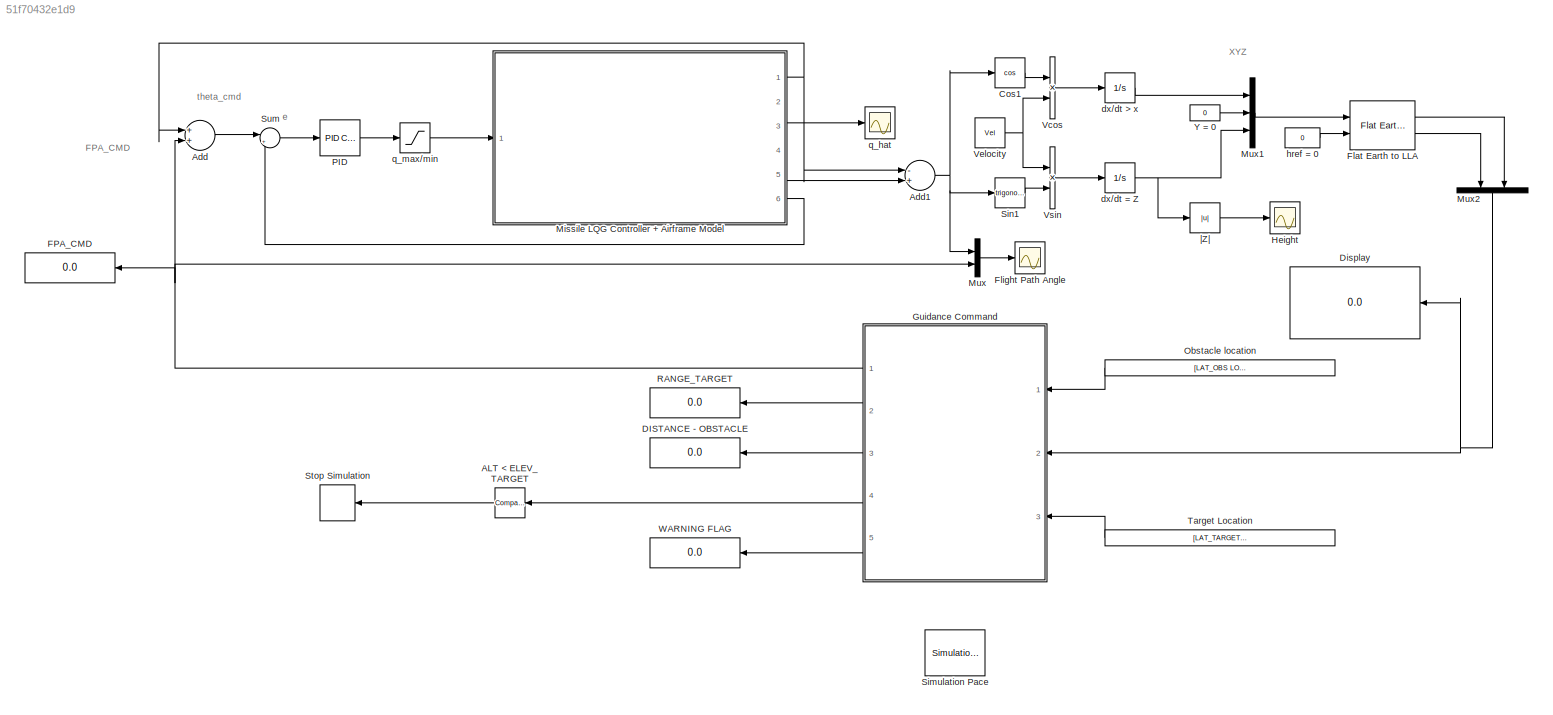
MODEL slx_51f70432e1d9
KIND model
CONFIG AbsTol = auto
CONFIG EnableMultiTasking = off
CONFIG FixedStep = auto
CONFIG MaxStep = auto
CONFIG MinStep = auto
CONFIG RelTol = 1e-3
CONFIG SampleTimeConstraint = Unconstrained
CONFIG Solver = VariableStepAuto
CONFIG SolverName = VariableStepAuto
CONFIG StartTime = 0.0
CONFIG StopTime = 80
BLOCK [Reference] ALT < ELEV_TARGET  REF=simulink/Logic and Bit
Operations/Compare
To Constant
  Ports = [1, 1]
  SourceBlock = simulink/Logic and Bit\nOperations/Compare\nTo Constant
  SourceProductBaseCode = SL
  SourceProductName = Simulink
  SourceType = Compare To Constant
BLOCK [Sum] Add
  InputSameDT = off
  OutDataTypeStr = Inherit: Inherit via internal rule
  Ports = [2, 1]
  SaturateOnIntegerOverflow = off
BLOCK [Sum] Add1
  InputSameDT = off
  Inputs = -+
  OutDataTypeStr = Inherit: Inherit via internal rule
  Ports = [2, 1]
  SaturateOnIntegerOverflow = off
BLOCK [Trigonometry] Cos1
  Operator = cos
  Ports = [1, 1]
BLOCK [Display] DISTANCE - OBSTACLE
  Decimation = 1
  Ports = [1]
BLOCK [Display] Display
  Decimation = 1
  Ports = [1]
BLOCK [Display] FPA_CMD
  Decimation = 1
  Ports = [1]
BLOCK [Reference] Flat Earth to LLA  REF=aerolibtransform2/Flat Earth to LLA
  Ports = [2, 2]
  SourceBlock = aerolibtransform2/Flat Earth to LLA
  SourceProductBaseCode = AE
  SourceProductName = Aerospace Blockset
  SourceType = Flat Earth to LLA
BLOCK [Scope] Flight Path Angle
  Floating = off
  NumInputPorts = 1
  Ports = [1]
  ScopeSpecificationString = Simulink.scopes.TimeScopeBlockCfg('CurrentConfiguration', extmgr.ConfigurationSet(extmgr.Configuration('Core','General UI',true),extmgr.Configuration('Core','Source UI',true),extmgr.Configuration('Sources','WiredSimulink',true,'DataLoggingVariableName','ScopeData1'),extmgr.Configuration('Visuals','Time Domain',true,'SerializedDisplays',{struct('MinYLimReal','-0.5859','MaxYLimReal','0.33583','YLabe...<+1434ch>
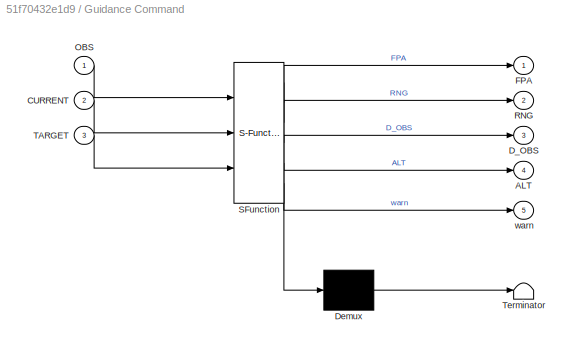
BLOCK [SubSystem] Guidance Command
  ErrorFcn = Stateflow.Translate.translate
  PermitHierarchicalResolution = ExplicitOnly
  Ports = [3, 5]
  RequestExecContextInheritance = off
  SFBlockType = MATLAB Function
  TreatAsAtomicUnit = on
BLOCK [Demux] Guidance Command/ Demux 
  Outputs = 1
  Ports = [1, 1]
BLOCK [S-Function] Guidance Command/ SFunction 
  EnableBusSupport = on
  FunctionName = sf_sfun
  PortCounts = [3 6]
  Ports = [3, 6]
  SFcnIsStateOwnerBlock = off
  SFunctionDeploymentMode = off
  Tag = Stateflow S-Function 2
BLOCK [Terminator] Guidance Command/ Terminator 
BLOCK [Outport] Guidance Command/ALT
  IconDisplay = Port number
  Port = 4
BLOCK [Inport] Guidance Command/CURRENT
  IconDisplay = Port number
  Port = 2
BLOCK [Outport] Guidance Command/D_OBS
  IconDisplay = Port number
  Port = 3
BLOCK [Outport] Guidance Command/FPA
  IconDisplay = Port number
BLOCK [Inport] Guidance Command/OBS
  IconDisplay = Port number
BLOCK [Outport] Guidance Command/RNG
  IconDisplay = Port number
  Port = 2
BLOCK [Inport] Guidance Command/TARGET
  IconDisplay = Port number
  Port = 3
BLOCK [Outport] Guidance Command/warn
  IconDisplay = Port number
  Port = 5
BLOCK [Scope] Height
  Floating = off
  NumInputPorts = 1
  Ports = [1]
  ScopeSpecificationString = Simulink.scopes.TimeScopeBlockCfg('CurrentConfiguration', extmgr.ConfigurationSet(extmgr.Configuration('Core','General UI',true),extmgr.Configuration('Core','Source UI',true),extmgr.Configuration('Sources','WiredSimulink',true,'DataLoggingVariableName','ScopeData2'),extmgr.Configuration('Visuals','Time Domain',true,'SerializedDisplays',{struct('MinYLimReal','-355.62572','MaxYLimReal','11150.63144'...<+1447ch>
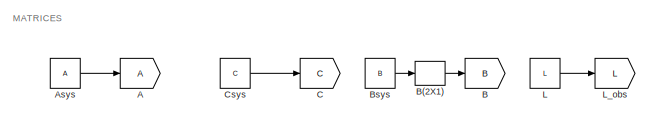
[diagram: Missile LQG Controller + Airframe Model - part 1/3, top center region]
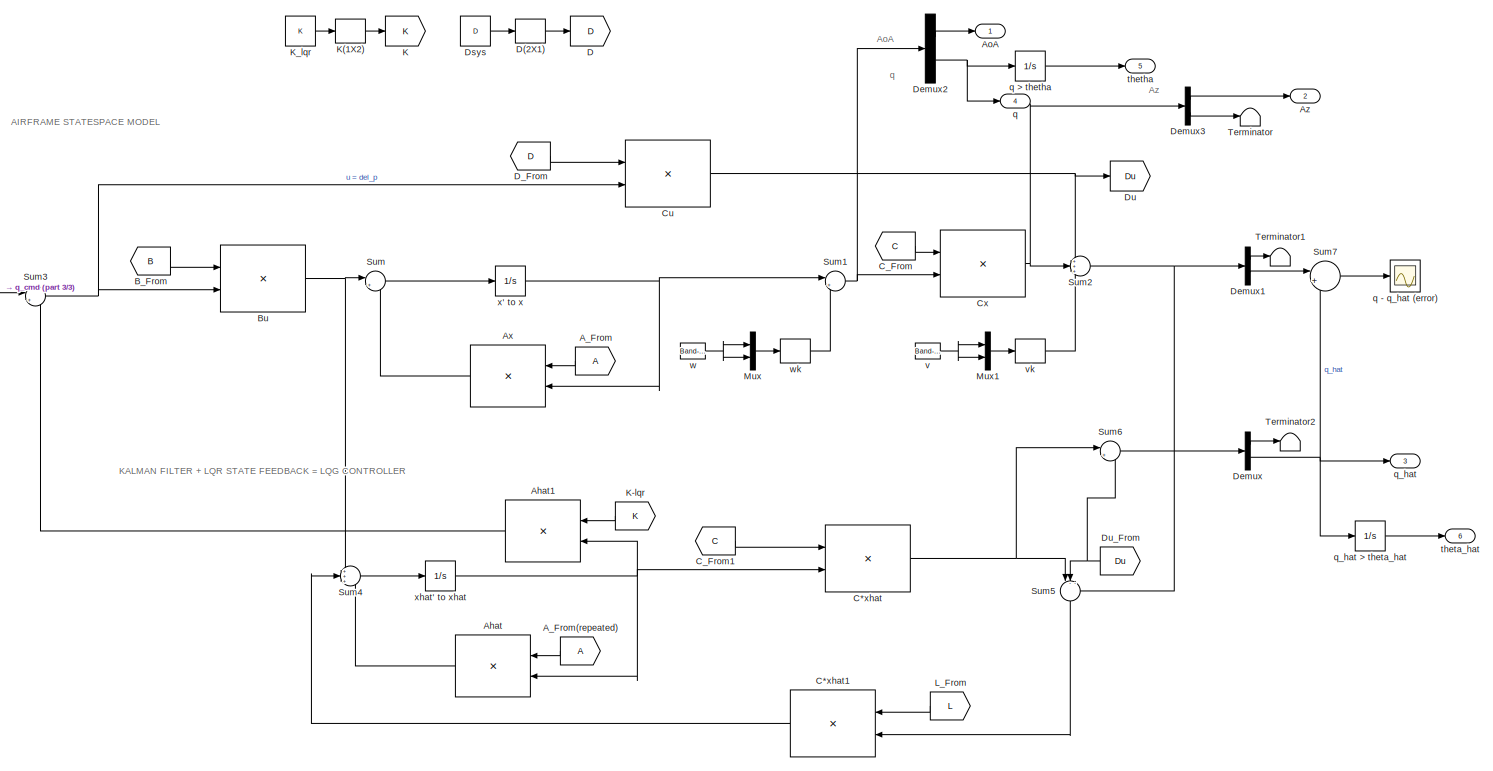
[diagram: Missile LQG Controller + Airframe Model - part 2/3, most of the canvas]
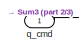
[diagram: Missile LQG Controller + Airframe Model - part 3/3, middle left region]
BLOCK [SubSystem] Missile LQG Controller + Airframe Model
  Ports = [1, 6]
  RequestExecContextInheritance = off
BLOCK [Goto] Missile LQG Controller + Airframe Model/A
BLOCK [From] Missile LQG Controller + Airframe Model/A_From
BLOCK [From] Missile LQG Controller + Airframe Model/A_From(repeated)
BLOCK [Product] Missile LQG Controller + Airframe Model/Ahat
  InputSameDT = off
  Multiplication = Matrix(*)
  OutDataTypeStr = Inherit: Inherit via internal rule
  Ports = [2, 1]
  RndMeth = Floor
  SaturateOnIntegerOverflow = off
BLOCK [Product] Missile LQG Controller + Airframe Model/Ahat1
  InputSameDT = off
  Multiplication = Matrix(*)
  OutDataTypeStr = Inherit: Inherit via internal rule
  Ports = [2, 1]
  RndMeth = Floor
  SaturateOnIntegerOverflow = off
BLOCK [Outport] Missile LQG Controller + Airframe Model/AoA
  IconDisplay = Port number
BLOCK [Constant] Missile LQG Controller + Airframe Model/Asys
  Value = A
BLOCK [Product] Missile LQG Controller + Airframe Model/Ax
  InputSameDT = off
  Multiplication = Matrix(*)
  OutDataTypeStr = Inherit: Inherit via internal rule
  Ports = [2, 1]
  RndMeth = Floor
  SaturateOnIntegerOverflow = off
BLOCK [Outport] Missile LQG Controller + Airframe Model/Az
  IconDisplay = Port number
  Port = 2
BLOCK [Goto] Missile LQG Controller + Airframe Model/B
  GotoTag = B
BLOCK [Reshape] Missile LQG Controller + Airframe Model/B(2X1)
  OutputDimensionality = Customize
  OutputDimensions = [2,1]
  Ports = [1, 1]
BLOCK [From] Missile LQG Controller + Airframe Model/B_From
  GotoTag = B
BLOCK [Constant] Missile LQG Controller + Airframe Model/Bsys
  Value = B
BLOCK [Product] Missile LQG Controller + Airframe Model/Bu
  InputSameDT = off
  Multiplication = Matrix(*)
  OutDataTypeStr = Inherit: Inherit via internal rule
  Ports = [2, 1]
  RndMeth = Floor
  SaturateOnIntegerOverflow = off
BLOCK [Goto] Missile LQG Controller + Airframe Model/C
  GotoTag = C
BLOCK [Product] Missile LQG Controller + Airframe Model/C*xhat
  InputSameDT = off
  Multiplication = Matrix(*)
  OutDataTypeStr = Inherit: Inherit via internal rule
  Ports = [2, 1]
  RndMeth = Floor
  SaturateOnIntegerOverflow = off
BLOCK [Product] Missile LQG Controller + Airframe Model/C*xhat1
  InputSameDT = off
  Multiplication = Matrix(*)
  OutDataTypeStr = Inherit: Inherit via internal rule
  Ports = [2, 1]
  RndMeth = Floor
  SaturateOnIntegerOverflow = off
BLOCK [From] Missile LQG Controller + Airframe Model/C_From
  GotoTag = C
BLOCK [From] Missile LQG Controller + Airframe Model/C_From1
  GotoTag = C
BLOCK [Constant] Missile LQG Controller + Airframe Model/Csys
  Value = C
BLOCK [Product] Missile LQG Controller + Airframe Model/Cu
  InputSameDT = off
  Multiplication = Matrix(*)
  OutDataTypeStr = Inherit: Inherit via internal rule
  Ports = [2, 1]
  RndMeth = Floor
  SaturateOnIntegerOverflow = off
BLOCK [Product] Missile LQG Controller + Airframe Model/Cx
  InputSameDT = off
  Multiplication = Matrix(*)
  OutDataTypeStr = Inherit: Inherit via internal rule
  Ports = [2, 1]
  RndMeth = Floor
  SaturateOnIntegerOverflow = off
BLOCK [Goto] Missile LQG Controller + Airframe Model/D
  GotoTag = D
BLOCK [Reshape] Missile LQG Controller + Airframe Model/D(2X1)
  OutputDimensionality = Customize
  OutputDimensions = [2,1]
  Ports = [1, 1]
BLOCK [From] Missile LQG Controller + Airframe Model/D_From
  GotoTag = D
BLOCK [Demux] Missile LQG Controller + Airframe Model/Demux
  DisplayOption = bar
  Outputs = 2
  Ports = [1, 2]
BLOCK [Demux] Missile LQG Controller + Airframe Model/Demux1
  DisplayOption = bar
  Outputs = 2
  Ports = [1, 2]
BLOCK [Demux] Missile LQG Controller + Airframe Model/Demux2
  DisplayOption = bar
  Outputs = 2
  Ports = [1, 2]
BLOCK [Demux] Missile LQG Controller + Airframe Model/Demux3
  DisplayOption = bar
  Outputs = 2
  Ports = [1, 2]
BLOCK [Constant] Missile LQG Controller + Airframe Model/Dsys
  Value = D
BLOCK [Goto] Missile LQG Controller + Airframe Model/Du
  GotoTag = Du
BLOCK [From] Missile LQG Controller + Airframe Model/Du_From
  GotoTag = Du
BLOCK [Goto] Missile LQG Controller + Airframe Model/K
  GotoTag = K
BLOCK [Reshape] Missile LQG Controller + Airframe Model/K(1X2)
  OutputDimensionality = Customize
  OutputDimensions = [1,2]
  Ports = [1, 1]
BLOCK [From] Missile LQG Controller + Airframe Model/K-lqr
  GotoTag = K
BLOCK [Constant] Missile LQG Controller + Airframe Model/K_lqr
  Value = K
BLOCK [Constant] Missile LQG Controller + Airframe Model/L 
  Value = L
BLOCK [From] Missile LQG Controller + Airframe Model/L_From
  GotoTag = L
BLOCK [Goto] Missile LQG Controller + Airframe Model/L_obs
  GotoTag = L
BLOCK [Mux] Missile LQG Controller + Airframe Model/Mux
  DisplayOption = bar
  Inputs = 2
  Ports = [2, 1]
BLOCK [Mux] Missile LQG Controller + Airframe Model/Mux1
  DisplayOption = bar
  Inputs = 2
  Ports = [2, 1]
BLOCK [Sum] Missile LQG Controller + Airframe Model/Sum
  IconShape = round
  InputSameDT = off
  Inputs = |++
  OutDataTypeStr = Inherit: Inherit via internal rule
  Ports = [2, 1]
  SaturateOnIntegerOverflow = off
BLOCK [Sum] Missile LQG Controller + Airframe Model/Sum1
  IconShape = round
  InputSameDT = off
  Inputs = |++
  OutDataTypeStr = Inherit: Inherit via internal rule
  Ports = [2, 1]
  SaturateOnIntegerOverflow = off
BLOCK [Sum] Missile LQG Controller + Airframe Model/Sum2
  IconShape = round
  InputSameDT = off
  Inputs = +++
  OutDataTypeStr = Inherit: Inherit via internal rule
  Ports = [3, 1]
  SaturateOnIntegerOverflow = off
BLOCK [Sum] Missile LQG Controller + Airframe Model/Sum3
  IconShape = round
  InputSameDT = off
  Inputs = |+-
  OutDataTypeStr = Inherit: Inherit via internal rule
  Ports = [2, 1]
  SaturateOnIntegerOverflow = off
BLOCK [Sum] Missile LQG Controller + Airframe Model/Sum4
  IconShape = round
  InputSameDT = off
  Inputs = +++
  OutDataTypeStr = Inherit: Inherit via internal rule
  Ports = [3, 1]
  SaturateOnIntegerOverflow = off
BLOCK [Sum] Missile LQG Controller + Airframe Model/Sum5
  IconShape = round
  InputSameDT = off
  Inputs = |--+
  OutDataTypeStr = Inherit: Inherit via internal rule
  Ports = [3, 1]
  SaturateOnIntegerOverflow = off
BLOCK [Sum] Missile LQG Controller + Airframe Model/Sum6
  IconShape = round
  InputSameDT = off
  Inputs = |++
  OutDataTypeStr = Inherit: Inherit via internal rule
  Ports = [2, 1]
  SaturateOnIntegerOverflow = off
BLOCK [Sum] Missile LQG Controller + Airframe Model/Sum7
  IconShape = round
  InputSameDT = off
  Inputs = |+-
  OutDataTypeStr = Inherit: Inherit via internal rule
  Ports = [2, 1]
  SaturateOnIntegerOverflow = off
BLOCK [Terminator] Missile LQG Controller + Airframe Model/Terminator
BLOCK [Terminator] Missile LQG Controller + Airframe Model/Terminator1
BLOCK [Terminator] Missile LQG Controller + Airframe Model/Terminator2
BLOCK [Outport] Missile LQG Controller + Airframe Model/q
  IconDisplay = Port number
  Port = 4
BLOCK [Scope] Missile LQG Controller + Airframe Model/q - q_hat (error)
  Floating = off
  NumInputPorts = 1
  Ports = [1]
  ScopeSpecificationString = Simulink.scopes.TimeScopeBlockCfg('CurrentConfiguration', extmgr.ConfigurationSet(extmgr.Configuration('Core','General UI',true),extmgr.Configuration('Core','Source UI',true),extmgr.Configuration('Sources','WiredSimulink',true),extmgr.Configuration('Visuals','Time Domain',true,'SerializedDisplays',{struct('MinYLimReal','-0.02017','MaxYLimReal','0.02144','YLabelReal','','MinYLimMag','0.00000','MaxY...<+1324ch>
BLOCK [Integrator] Missile LQG Controller + Airframe Model/q > thetha
  Ports = [1, 1]
BLOCK [Inport] Missile LQG Controller + Airframe Model/q_cmd 
  IconDisplay = Port number
BLOCK [Outport] Missile LQG Controller + Airframe Model/q_hat
  IconDisplay = Port number
  Port = 3
BLOCK [Integrator] Missile LQG Controller + Airframe Model/q_hat > theta_hat
  Ports = [1, 1]
BLOCK [Outport] Missile LQG Controller + Airframe Model/theta_hat
  IconDisplay = Port number
  Port = 6
BLOCK [Outport] Missile LQG Controller + Airframe Model/thetha
  IconDisplay = Port number
  Port = 5
BLOCK [Reference] Missile LQG Controller + Airframe Model/v  REF=simulink/Sources/Band-Limited
White Noise
  Ports = [0, 1]
  SourceBlock = simulink/Sources/Band-Limited\nWhite Noise
  SourceProductBaseCode = SL
  SourceProductName = Simulink
  SourceType = Band-Limited White Noise.
BLOCK [Reshape] Missile LQG Controller + Airframe Model/vk
  OutputDimensionality = Customize
  OutputDimensions = [2,1]
  Ports = [1, 1]
BLOCK [Reference] Missile LQG Controller + Airframe Model/w  REF=simulink/Sources/Band-Limited
White Noise
  Ports = [0, 1]
  SourceBlock = simulink/Sources/Band-Limited\nWhite Noise
  SourceProductBaseCode = SL
  SourceProductName = Simulink
  SourceType = Band-Limited White Noise.
BLOCK [Reshape] Missile LQG Controller + Airframe Model/wk
  OutputDimensionality = Customize
  OutputDimensions = [2,1]
  Ports = [1, 1]
BLOCK [Integrator] Missile LQG Controller + Airframe Model/x' to x
  Ports = [1, 1]
BLOCK [Integrator] Missile LQG Controller + Airframe Model/xhat' to xhat
  Ports = [1, 1]
BLOCK [Mux] Mux
  DisplayOption = bar
  Inputs = 2
  Ports = [2, 1]
BLOCK [Mux] Mux1
  DisplayOption = bar
  Inputs = 3
  Ports = [3, 1]
BLOCK [Mux] Mux2
  DisplayOption = bar
  Inputs = 2
  Ports = [2, 1]
BLOCK [Constant] Obstacle location
  Value = [LAT_OBS LON_OBS ELEV_OBS]
  VectorParams1D = off
BLOCK [Reference] PID   REF=simulink/Continuous/PID Controller
  Ports = [1, 1]
  SourceBlock = simulink/Continuous/PID Controller
  SourceProductBaseCode = SL
  SourceProductName = Simulink
  SourceType = PID 1dof
BLOCK [Display] RANGE_TARGET
  Decimation = 1
  Ports = [1]
BLOCK [Reference] Simulation Pace  REF=aerolibanimutils/Simulation Pace
  AttributesFormatString = %<SleepMode>\n%<SimulationPace> sec/sec
  Ports = []
  SourceBlock = aerolibanimutils/Simulation Pace
  SourceProductBaseCode = AE
  SourceProductName = Aerospace Blockset
  SourceType = Simulation Pace
BLOCK [Trigonometry] Sin1
  Ports = [1, 1]
BLOCK [Stop] Stop Simulation
BLOCK [Sum] Sum
  IconShape = round
  InputSameDT = off
  Inputs = |+-
  OutDataTypeStr = Inherit: Inherit via internal rule
  Ports = [2, 1]
  SaturateOnIntegerOverflow = off
BLOCK [Constant] Target Location
  Value = [LAT_TARGET LON_TARGET ELEV_TARGET]
  VectorParams1D = off
BLOCK [Product] Vcos
  InputSameDT = off
  OutDataTypeStr = Inherit: Inherit via internal rule
  Ports = [2, 1]
  RndMeth = Floor
  SaturateOnIntegerOverflow = off
BLOCK [Constant] Velocity
  Value = Vel
BLOCK [Product] Vsin
  InputSameDT = off
  OutDataTypeStr = Inherit: Inherit via internal rule
  Ports = [2, 1]
  RndMeth = Floor
  SaturateOnIntegerOverflow = off
BLOCK [Display] WARNING FLAG
  Decimation = 1
  Ports = [1]
BLOCK [Constant] Y = 0
  Value = 0
BLOCK [Integrator] dx//dt = Z
  InitialCondition = -ELEV_INIT
  Ports = [1, 1]
BLOCK [Integrator] dx//dt > x
  Ports = [1, 1]
BLOCK [Constant] href = 0
  Value = 0
BLOCK [Scope] q_hat
  Floating = off
  NumInputPorts = 1
  Ports = [1]
  ScopeSpecificationString = Simulink.scopes.TimeScopeBlockCfg('CurrentConfiguration', extmgr.ConfigurationSet(extmgr.Configuration('Core','General UI',true),extmgr.Configuration('Core','Source UI',true),extmgr.Configuration('Sources','WiredSimulink',true,'DataLoggingVariableName','ScopeData1'),extmgr.Configuration('Visuals','Time Domain',true,'SerializedDisplays',{struct('MinYLimReal','-1.04327','MaxYLimReal','1.06516','YLab...<+1467ch>
BLOCK [Saturate] q_max//min
  InputPortMap = u0
  Ports = [1, 1]
BLOCK [Abs] |Z|
  SaturateOnIntegerOverflow = off
ANNOTATION (root): FPA_CMD
ANNOTATION (root): XYZ
ANNOTATION (root): e
ANNOTATION (root): theta_cmd
ANNOTATION Missile LQG Controller + Airframe Model: AIRFRAME STATESPACE MODEL
ANNOTATION Missile LQG Controller + Airframe Model: AoA
ANNOTATION Missile LQG Controller + Airframe Model: Az
ANNOTATION Missile LQG Controller + Airframe Model: KALMAN FILTER + LQR STATE FEEDBACK = LQG CONTROLLER
ANNOTATION Missile LQG Controller + Airframe Model: MATRICES
ANNOTATION Missile LQG Controller + Airframe Model: q
LINE ALT < ELEV_TARGET:1 -> Stop Simulation:1
NET Add1:1 -> Cos1:1, Mux:1, Sin1:1
LINE Add:1 -> Sum:1
LINE Cos1:1 -> Vcos:1
LINE Flat Earth to LLA:1 -> Mux2:2
LINE Flat Earth to LLA:2 -> Mux2:1
NET Guidance Command:1 -> Add:2, FPA_CMD:1, Mux:2
LINE Guidance Command:2 -> RANGE_TARGET:1
LINE Guidance Command:3 -> DISTANCE - OBSTACLE:1
LINE Guidance Command:4 -> ALT < ELEV_TARGET:1
LINE Guidance Command:5 -> WARNING FLAG:1
LINE Missile LQG Controller + Airframe Model/A_From(repeated):1 -> Missile LQG Controller + Airframe Model/Ahat:1
LINE Missile LQG Controller + Airframe Model/A_From:1 -> Missile LQG Controller + Airframe Model/Ax:1
LINE Missile LQG Controller + Airframe Model/Ahat1:1 -> Missile LQG Controller + Airframe Model/Sum3:2
LINE Missile LQG Controller + Airframe Model/Ahat:1 -> Missile LQG Controller + Airframe Model/Sum4:3
LINE Missile LQG Controller + Airframe Model/Asys:1 -> Missile LQG Controller + Airframe Model/A:1
LINE Missile LQG Controller + Airframe Model/Ax:1 -> Missile LQG Controller + Airframe Model/Sum:2
LINE Missile LQG Controller + Airframe Model/B(2X1):1 -> Missile LQG Controller + Airframe Model/B:1
LINE Missile LQG Controller + Airframe Model/B_From:1 -> Missile LQG Controller + Airframe Model/Bu:1
LINE Missile LQG Controller + Airframe Model/Bsys:1 -> Missile LQG Controller + Airframe Model/B(2X1):1
NET Missile LQG Controller + Airframe Model/Bu:1 -> Missile LQG Controller + Airframe Model/Sum4:1, Missile LQG Controller + Airframe Model/Sum:1
LINE Missile LQG Controller + Airframe Model/C*xhat1:1 -> Missile LQG Controller + Airframe Model/Sum4:2
NET Missile LQG Controller + Airframe Model/C*xhat:1 -> Missile LQG Controller + Airframe Model/Sum5:1, Missile LQG Controller + Airframe Model/Sum6:1
LINE Missile LQG Controller + Airframe Model/C_From1:1 -> Missile LQG Controller + Airframe Model/C*xhat:1
LINE Missile LQG Controller + Airframe Model/C_From:1 -> Missile LQG Controller + Airframe Model/Cx:1
LINE Missile LQG Controller + Airframe Model/Csys:1 -> Missile LQG Controller + Airframe Model/C:1
NET Missile LQG Controller + Airframe Model/Cu:1 -> Missile LQG Controller + Airframe Model/Du:1, Missile LQG Controller + Airframe Model/Sum2:1
NET Missile LQG Controller + Airframe Model/Cx:1 -> Missile LQG Controller + Airframe Model/Demux3:1, Missile LQG Controller + Airframe Model/Sum2:2
LINE Missile LQG Controller + Airframe Model/D(2X1):1 -> Missile LQG Controller + Airframe Model/D:1
LINE Missile LQG Controller + Airframe Model/D_From:1 -> Missile LQG Controller + Airframe Model/Cu:1
LINE Missile LQG Controller + Airframe Model/Demux1:1 -> Missile LQG Controller + Airframe Model/Terminator1:1
LINE Missile LQG Controller + Airframe Model/Demux1:2 -> Missile LQG Controller + Airframe Model/Sum7:1
LINE Missile LQG Controller + Airframe Model/Demux2:1 -> Missile LQG Controller + Airframe Model/AoA:1
NET Missile LQG Controller + Airframe Model/Demux2:2 -> Missile LQG Controller + Airframe Model/q > thetha:1, Missile LQG Controller + Airframe Model/q:1
LINE Missile LQG Controller + Airframe Model/Demux3:1 -> Missile LQG Controller + Airframe Model/Az:1
LINE Missile LQG Controller + Airframe Model/Demux3:2 -> Missile LQG Controller + Airframe Model/Terminator:1
LINE Missile LQG Controller + Airframe Model/Demux:1 -> Missile LQG Controller + Airframe Model/Terminator2:1
NET Missile LQG Controller + Airframe Model/Demux:2 -> Missile LQG Controller + Airframe Model/Sum7:2, Missile LQG Controller + Airframe Model/q_hat > theta_hat:1, Missile LQG Controller + Airframe Model/q_hat:1
LINE Missile LQG Controller + Airframe Model/Dsys:1 -> Missile LQG Controller + Airframe Model/D(2X1):1
NET Missile LQG Controller + Airframe Model/Du_From:1 -> Missile LQG Controller + Airframe Model/Sum5:2, Missile LQG Controller + Airframe Model/Sum6:2
LINE Missile LQG Controller + Airframe Model/K(1X2):1 -> Missile LQG Controller + Airframe Model/K:1
LINE Missile LQG Controller + Airframe Model/K-lqr:1 -> Missile LQG Controller + Airframe Model/Ahat1:1
LINE Missile LQG Controller + Airframe Model/K_lqr:1 -> Missile LQG Controller + Airframe Model/K(1X2):1
LINE Missile LQG Controller + Airframe Model/L :1 -> Missile LQG Controller + Airframe Model/L_obs:1
LINE Missile LQG Controller + Airframe Model/L_From:1 -> Missile LQG Controller + Airframe Model/C*xhat1:1
LINE Missile LQG Controller + Airframe Model/Mux1:1 -> Missile LQG Controller + Airframe Model/vk:1
LINE Missile LQG Controller + Airframe Model/Mux:1 -> Missile LQG Controller + Airframe Model/wk:1
NET Missile LQG Controller + Airframe Model/Sum1:1 -> Missile LQG Controller + Airframe Model/Cx:2, Missile LQG Controller + Airframe Model/Demux2:1
NET Missile LQG Controller + Airframe Model/Sum2:1 -> Missile LQG Controller + Airframe Model/Demux1:1, Missile LQG Controller + Airframe Model/Sum5:3
NET Missile LQG Controller + Airframe Model/Sum3:1 -> Missile LQG Controller + Airframe Model/Bu:2, Missile LQG Controller + Airframe Model/Cu:2
LINE Missile LQG Controller + Airframe Model/Sum4:1 -> Missile LQG Controller + Airframe Model/xhat' to xhat:1
LINE Missile LQG Controller + Airframe Model/Sum5:1 -> Missile LQG Controller + Airframe Model/C*xhat1:2
LINE Missile LQG Controller + Airframe Model/Sum6:1 -> Missile LQG Controller + Airframe Model/Demux:1
LINE Missile LQG Controller + Airframe Model/Sum7:1 -> Missile LQG Controller + Airframe Model/q - q_hat (error):1
LINE Missile LQG Controller + Airframe Model/Sum:1 -> Missile LQG Controller + Airframe Model/x' to x:1
LINE Missile LQG Controller + Airframe Model/q > thetha:1 -> Missile LQG Controller + Airframe Model/thetha:1
LINE Missile LQG Controller + Airframe Model/q_cmd :1 -> Missile LQG Controller + Airframe Model/Sum3:1
LINE Missile LQG Controller + Airframe Model/q_hat > theta_hat:1 -> Missile LQG Controller + Airframe Model/theta_hat:1
NET Missile LQG Controller + Airframe Model/v:1 -> Missile LQG Controller + Airframe Model/Mux1:1, Missile LQG Controller + Airframe Model/Mux1:2
LINE Missile LQG Controller + Airframe Model/vk:1 -> Missile LQG Controller + Airframe Model/Sum2:3
NET Missile LQG Controller + Airframe Model/w:1 -> Missile LQG Controller + Airframe Model/Mux:1, Missile LQG Controller + Airframe Model/Mux:2
LINE Missile LQG Controller + Airframe Model/wk:1 -> Missile LQG Controller + Airframe Model/Sum1:2
NET Missile LQG Controller + Airframe Model/x' to x:1 -> Missile LQG Controller + Airframe Model/Ax:2, Missile LQG Controller + Airframe Model/Sum1:1
NET Missile LQG Controller + Airframe Model/xhat' to xhat:1 -> Missile LQG Controller + Airframe Model/Ahat1:2, Missile LQG Controller + Airframe Model/Ahat:2, Missile LQG Controller + Airframe Model/C*xhat:2
NET Missile LQG Controller + Airframe Model:1 -> Add1:1, Add:1
LINE Missile LQG Controller + Airframe Model:3 -> q_hat:1
LINE Missile LQG Controller + Airframe Model:5 -> Add1:2
LINE Missile LQG Controller + Airframe Model:6 -> Sum:2
LINE Mux1:1 -> Flat Earth to LLA:1
NET Mux2:1 -> Display:1, Guidance Command:2
LINE Mux:1 -> Flight Path Angle:1
LINE Obstacle location:1 -> Guidance Command:1
LINE PID :1 -> q_max//min:1
LINE Sin1:1 -> Vsin:2
LINE Sum:1 -> PID :1
LINE Target Location:1 -> Guidance Command:3
LINE Vcos:1 -> dx//dt > x:1
NET Velocity:1 -> Vcos:2, Vsin:1
LINE Vsin:1 -> dx//dt = Z:1
LINE Y = 0:1 -> Mux1:2
NET dx//dt = Z:1 -> Mux1:3, |Z|:1
LINE dx//dt > x:1 -> Mux1:1
LINE href = 0:1 -> Flat Earth to LLA:2
LINE q_max//min:1 -> Missile LQG Controller + Airframe Model:1
LINE |Z|:1 -> Height:1
note: NET lines group one-source signal fan-out (src -> all destinations, sorted); 1:1 wires keep LINE
CHART Guidance Command states=1 transitions=1
  STATE_LABEL 'eML_blk_kernel()'
  STATE_LABEL 'SCRIPT:\nfunction [FPA, RNG, D_OBS, ALT, warn] = fcn(OBS, CURRENT, TARGET)\n\nd2r = pi / 180;   %degree to radians\nR = 6371e3;\n\n% OBSTACLE LOCATION\nLAT_OBS = OBS(1);\nLON_OBS = OBS(2);\nELEV_OBS = OBS(3);\n\n% OBSTACLE THRESHOLD ZONE\nthres = 3000;\n\n% TARGET LOCATION\nLAT_TARGET = TARGET(1);\nLON_TARGET = TARGET(2);\nELEV_TARGET = TARGET(3);\n\n% CURRENT LOCATION\nELEV_CUR = CURRENT(1);\nLAT_CUR = CURRENT(2);\nLO...<+1020ch>'
